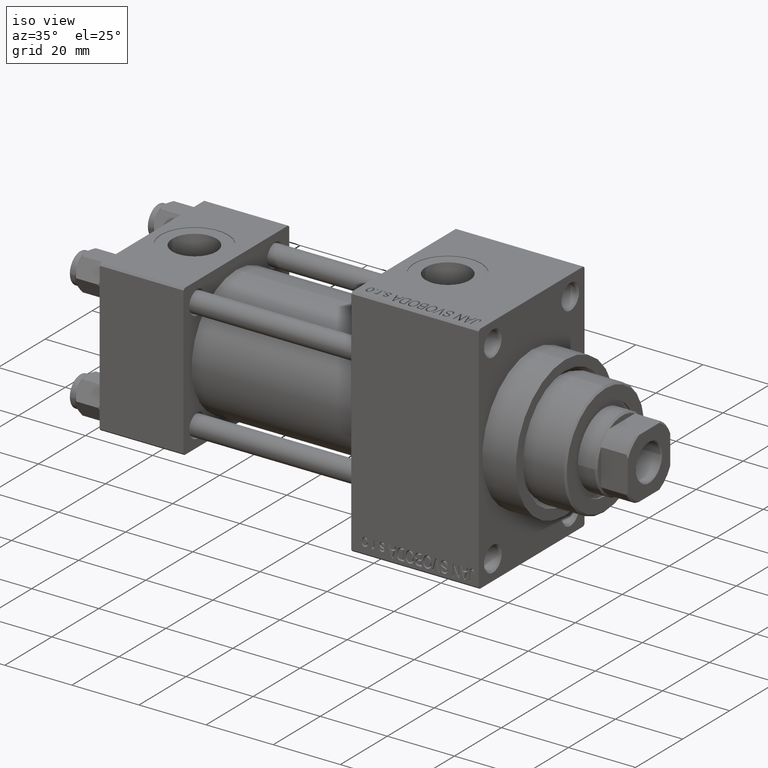
[diagram: clean part render]
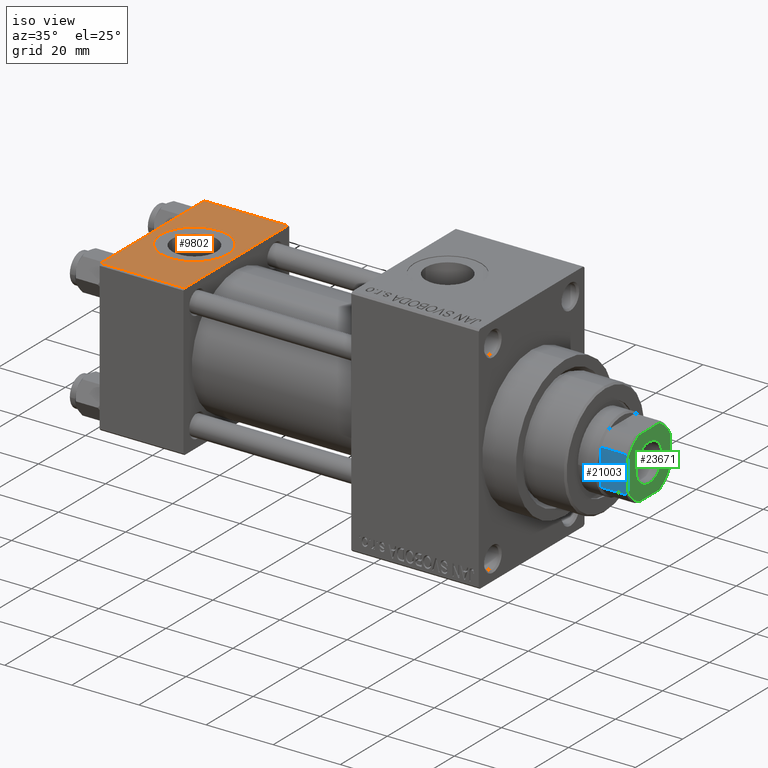
[diagram: same view with three faces highlighted in distinct colors, each labeled with its STEP entity id]
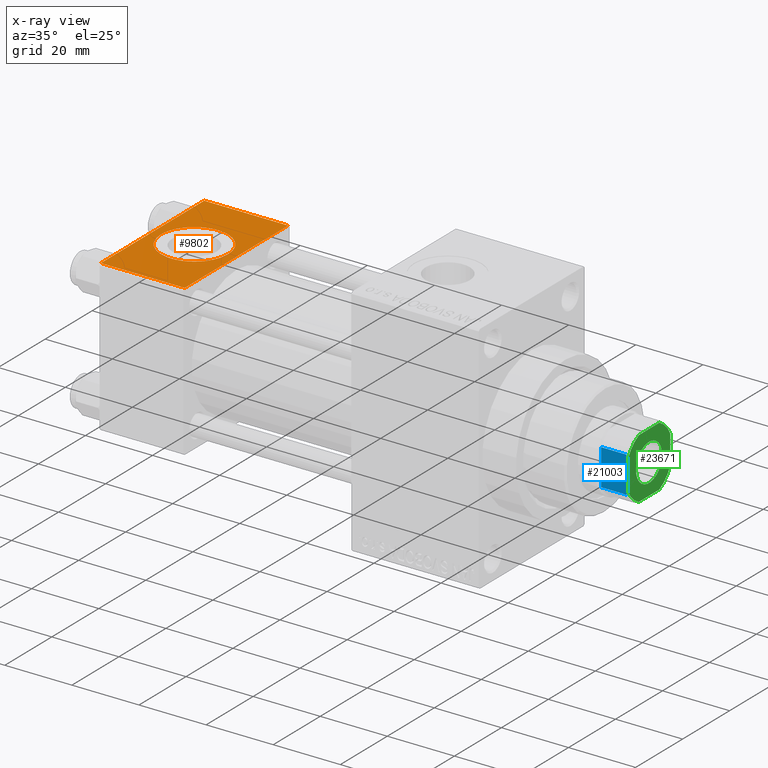
[diagram: x-ray of the same camera — body ghosted, the three highlighted faces saturated]
A machine part, iso view with three faces highlighted in distinct colors.
The next image is the same camera in x-ray (body ghosted, the three faces saturated) — at least one of them is partly hidden behind the body in this view.
Their STEP definitions:

[orange] entity #9802 — the highlighted planar face has unit normal (0, 0, -1).
#289 = ORIENTED_EDGE ( 'NONE', *, *, #6999, .T. ) ;
#1134 = EDGE_CURVE ( 'NONE', #44492, #31814, #42857, .T. ) ;
#2962 = DIRECTION ( 'NONE',  ( 1.000000000000000000, 0.000000000000000000, 0.000000000000000000 ) ) ;
#5297 = EDGE_LOOP ( 'NONE', ( #23133, #39540, #43624, #289 ) ) ;
#6059 = DIRECTION ( 'NONE',  ( 0.000000000000000000, -1.000000000000000000, -7.709882115452476934E-17 ) ) ;
#6999 = EDGE_CURVE ( 'NONE', #16542, #35653, #28659, .T. ) ;
#9763 = EDGE_CURVE ( 'NONE', #35653, #19019, #25685, .T. ) ;
#9802 = ADVANCED_FACE ( 'NONE', ( #44322, #18282 ), #33558, .F. ) ;
#10093 = CARTESIAN_POINT ( 'NONE',  ( 0.000000000000000000, 21.99999999999999289, 22.50000000000000355 ) ) ;
#10182 = CARTESIAN_POINT ( 'NONE',  ( 0.000000000000000000, -21.99999999999997868, 22.50000000000000000 ) ) ;
#11843 = CARTESIAN_POINT ( 'NONE',  ( 0.000000000000000000, 22.50000000000000000, 22.50000000000000355 ) ) ;
#12989 = AXIS2_PLACEMENT_3D ( 'NONE', #40463, #28546, #21615 ) ;
#14083 = VECTOR ( 'NONE', #6059, 1000.000000000000000 ) ;
#15267 = CIRCLE ( 'NONE', #12989, 9.999999999999998224 ) ;
#15414 = DIRECTION ( 'NONE',  ( 0.000000000000000000, 7.709882115452476934E-17, -1.000000000000000000 ) ) ;
#15662 = VECTOR ( 'NONE', #26959, 1000.000000000000000 ) ;
#16469 = ORIENTED_EDGE ( 'NONE', *, *, #22472, .F. ) ;
#16542 = VERTEX_POINT ( 'NONE', #37734 ) ;
#17755 = VECTOR ( 'NONE', #17919, 1000.000000000000000 ) ;
#17919 = DIRECTION ( 'NONE',  ( -1.000000000000000000, 0.000000000000000000, 0.000000000000000000 ) ) ;
#18282 = FACE_OUTER_BOUND ( 'NONE', #5297, .T. ) ;
#19019 = VERTEX_POINT ( 'NONE', #10182 ) ;
#20028 = CARTESIAN_POINT ( 'NONE',  ( 2.500000000000003997, -5.100766768294543310E-16, 22.50000000000000000 ) ) ;
#21069 = CARTESIAN_POINT ( 'NONE',  ( 12.50000000000000000, -1.734723475976807094E-15, 22.50000000000000000 ) ) ;
#21075 = VECTOR ( 'NONE', #40726, 1000.000000000000000 ) ;
#21615 = DIRECTION ( 'NONE',  ( 1.000000000000000000, 0.000000000000000000, 0.000000000000000000 ) ) ;
#22472 = EDGE_CURVE ( 'NONE', #31814, #44492, #15267, .T. ) ;
#23133 = ORIENTED_EDGE ( 'NONE', *, *, #9763, .T. ) ;
#23692 = CARTESIAN_POINT ( 'NONE',  ( 25.00000000000000000, 22.50000000000000000, 22.50000000000000355 ) ) ;
#24620 = CARTESIAN_POINT ( 'NONE',  ( 22.50000000000000000, -1.734723475976807094E-15, 22.50000000000000000 ) ) ;
#25685 = LINE ( 'NONE', #11843, #21075 ) ;
#26959 = DIRECTION ( 'NONE',  ( 1.000000000000000000, 0.000000000000000000, 0.000000000000000000 ) ) ;
#27433 = LINE ( 'NONE', #42007, #15662 ) ;
#28546 = DIRECTION ( 'NONE',  ( 0.000000000000000000, 0.000000000000000000, 1.000000000000000000 ) ) ;
#28659 = LINE ( 'NONE', #39415, #17755 ) ;
#28786 = CARTESIAN_POINT ( 'NONE',  ( 25.00000000000000000, -21.99999999999997868, 22.50000000000000000 ) ) ;
#29968 = DIRECTION ( 'NONE',  ( 0.000000000000000000, 1.000000000000000000, 7.709882115452476934E-17 ) ) ;
#30547 = ORIENTED_EDGE ( 'NONE', *, *, #1134, .F. ) ;
#30980 = AXIS2_PLACEMENT_3D ( 'NONE', #23692, #15414, #29968 ) ;
#31814 = VERTEX_POINT ( 'NONE', #24620 ) ;
#33431 = VERTEX_POINT ( 'NONE', #28786 ) ;
#33558 = PLANE ( 'NONE',  #30980 ) ;
#35653 = VERTEX_POINT ( 'NONE', #10093 ) ;
#35682 = EDGE_CURVE ( 'NONE', #16542, #33431, #46621, .T. ) ;
#37734 = CARTESIAN_POINT ( 'NONE',  ( 25.00000000000000000, 21.99999999999999289, 22.50000000000000355 ) ) ;
#37781 = EDGE_LOOP ( 'NONE', ( #16469, #30547 ) ) ;
#38741 = CARTESIAN_POINT ( 'NONE',  ( 25.00000000000000000, 22.50000000000000000, 22.50000000000000355 ) ) ;
#39144 = EDGE_CURVE ( 'NONE', #19019, #33431, #27433, .T. ) ;
#39415 = CARTESIAN_POINT ( 'NONE',  ( 0.000000000000000000, 21.99999999999999289, 22.50000000000000355 ) ) ;
#39540 = ORIENTED_EDGE ( 'NONE', *, *, #39144, .T. ) ;
#39800 = AXIS2_PLACEMENT_3D ( 'NONE', #21069, #42802, #2962 ) ;
#40463 = CARTESIAN_POINT ( 'NONE',  ( 12.50000000000000000, -1.734723475976807094E-15, 22.50000000000000000 ) ) ;
#40726 = DIRECTION ( 'NONE',  ( 0.000000000000000000, -1.000000000000000000, -7.709882115452476934E-17 ) ) ;
#42007 = CARTESIAN_POINT ( 'NONE',  ( 25.00000000000000000, -21.99999999999999289, 22.50000000000000000 ) ) ;
#42802 = DIRECTION ( 'NONE',  ( 0.000000000000000000, 0.000000000000000000, 1.000000000000000000 ) ) ;
#42857 = CIRCLE ( 'NONE', #39800, 9.999999999999998224 ) ;
#43624 = ORIENTED_EDGE ( 'NONE', *, *, #35682, .F. ) ;
#44322 = FACE_BOUND ( 'NONE', #37781, .T. ) ;
#44492 = VERTEX_POINT ( 'NONE', #20028 ) ;
#46621 = LINE ( 'NONE', #38741, #14083 ) ;

[blue] entity #21003 — the highlighted planar face has unit normal (0, 1, 0).
#91 = LINE ( 'NONE', #43760, #16220 ) ;
#2322 = ORIENTED_EDGE ( 'NONE', *, *, #40978, .F. ) ;
#2634 = FACE_OUTER_BOUND ( 'NONE', #13482, .T. ) ;
#4565 = CARTESIAN_POINT ( 'NONE',  ( 9.000000000000000000, -5.063687070142444568, 122.6775166608139216 ) ) ;
#5171 = LINE ( 'NONE', #23288, #30288 ) ;
#5231 = DIRECTION ( 'NONE',  ( -1.927470528863119049E-16, 1.000000000000000000, -0.000000000000000000 ) ) ;
#5982 = CARTESIAN_POINT ( 'NONE',  ( 8.999999999999996447, -5.408326913195990571, 122.5000000000000000 ) ) ;
#6258 = EDGE_CURVE ( 'NONE', #35624, #19063, #12392, .T. ) ;
#6737 = EDGE_CURVE ( 'NONE', #23000, #41305, #91, .T. ) ;
#8115 = EDGE_CURVE ( 'NONE', #41305, #35624, #11708, .T. ) ;
#8135 = EDGE_CURVE ( 'NONE', #40730, #33059, #21929, .T. ) ;
#8509 = ORIENTED_EDGE ( 'NONE', *, *, #6258, .T. ) ;
#8562 = CARTESIAN_POINT ( 'NONE',  ( 8.999999999999996447, 8.999999999999998224, 123.0000000000000000 ) ) ;
#9937 = CARTESIAN_POINT ( 'NONE',  ( 8.999999999999996447, 5.063687070142427693, 122.6775166608138932 ) ) ;
#11564 = EDGE_CURVE ( 'NONE', #23000, #33059, #5171, .T. ) ;
#11708 = LINE ( 'NONE', #41057, #21601 ) ;
#12392 = B_SPLINE_CURVE_WITH_KNOTS ( 'NONE', 3,
 ( #45997, #9937, #13523, #17099 ),
 .UNSPECIFIED., .F., .F.,
 ( 4, 4 ),
 ( 0.000000000000000000, 0.001162453897363273890 ),
 .UNSPECIFIED. ) ;
#12710 = ORIENTED_EDGE ( 'NONE', *, *, #11564, .F. ) ;
#13275 = ORIENTED_EDGE ( 'NONE', *, *, #6737, .T. ) ;
#13482 = EDGE_LOOP ( 'NONE', ( #33903, #8509, #2322, #27275, #12710, #13275 ) ) ;
#13523 = CARTESIAN_POINT ( 'NONE',  ( 8.999999999999998224, 4.714305797500204065, 122.8450817439748306 ) ) ;
#13704 = DIRECTION ( 'NONE',  ( -1.927470528863119049E-16, 1.000000000000000000, -0.000000000000000000 ) ) ;
#13818 = PLANE ( 'NONE',  #38865 ) ;
#14578 = CARTESIAN_POINT ( 'NONE',  ( 8.999999999999996447, -5.408326913195990571, 115.0000000000000284 ) ) ;
#14605 = CARTESIAN_POINT ( 'NONE',  ( 8.999999999999996447, 5.408326913195991459, 115.0000000000000284 ) ) ;
#14817 = CARTESIAN_POINT ( 'NONE',  ( 9.000000000000000000, -4.714305797500252027, 122.8450817439748448 ) ) ;
#16220 = VECTOR ( 'NONE', #13704, 1000.000000000000000 ) ;
#16443 = DIRECTION ( 'NONE',  ( 1.927470528863119049E-16, -1.000000000000000000, 0.000000000000000000 ) ) ;
#17099 = CARTESIAN_POINT ( 'NONE',  ( 8.999999999999998224, 4.358898943540600257, 123.0000000000000000 ) ) ;
#17254 = CARTESIAN_POINT ( 'NONE',  ( 8.999999999999996447, 5.408326913195991459, 122.4999999999999716 ) ) ;
#17657 = CARTESIAN_POINT ( 'NONE',  ( 8.999999999999998224, -4.358898943540672200, 123.0000000000000000 ) ) ;
#18621 = CARTESIAN_POINT ( 'NONE',  ( 8.999999999999996447, -5.408326913195990571, 122.5000000000000000 ) ) ;
#19063 = VERTEX_POINT ( 'NONE', #26772 ) ;
#19761 = LINE ( 'NONE', #8562, #30993 ) ;
#20734 = DIRECTION ( 'NONE',  ( -1.000000000000000000, -1.927470528863119049E-16, 0.000000000000000000 ) ) ;
#21003 = ADVANCED_FACE ( 'NONE', ( #2634 ), #13818, .F. ) ;
#21601 = VECTOR ( 'NONE', #21973, 1000.000000000000000 ) ;
#21929 = B_SPLINE_CURVE_WITH_KNOTS ( 'NONE', 3,
 ( #26719, #14817, #4565, #18621 ),
 .UNSPECIFIED., .F., .F.,
 ( 4, 4 ),
 ( 0.000000000000000000, 0.001162453897363195177 ),
 .UNSPECIFIED. ) ;
#21973 = DIRECTION ( 'NONE',  ( -0.000000000000000000, -0.000000000000000000, 1.000000000000000000 ) ) ;
#23000 = VERTEX_POINT ( 'NONE', #14578 ) ;
#23288 = CARTESIAN_POINT ( 'NONE',  ( 8.999999999999996447, -5.408326913195990571, -0.001000000000001000089 ) ) ;
#26719 = CARTESIAN_POINT ( 'NONE',  ( 8.999999999999998224, -4.358898943540672200, 123.0000000000000000 ) ) ;
#26772 = CARTESIAN_POINT ( 'NONE',  ( 8.999999999999998224, 4.358898943540600257, 123.0000000000000000 ) ) ;
#26862 = DIRECTION ( 'NONE',  ( -0.000000000000000000, -0.000000000000000000, 1.000000000000000000 ) ) ;
#27275 = ORIENTED_EDGE ( 'NONE', *, *, #8135, .T. ) ;
#30288 = VECTOR ( 'NONE', #26862, 1000.000000000000000 ) ;
#30993 = VECTOR ( 'NONE', #5231, 1000.000000000000000 ) ;
#33059 = VERTEX_POINT ( 'NONE', #5982 ) ;
#33903 = ORIENTED_EDGE ( 'NONE', *, *, #8115, .T. ) ;
#35062 = CARTESIAN_POINT ( 'NONE',  ( 8.999999999999996447, 8.999999999999998224, 123.0000000000000000 ) ) ;
#35624 = VERTEX_POINT ( 'NONE', #17254 ) ;
#38865 = AXIS2_PLACEMENT_3D ( 'NONE', #35062, #20734, #16443 ) ;
#40730 = VERTEX_POINT ( 'NONE', #17657 ) ;
#40978 = EDGE_CURVE ( 'NONE', #40730, #19063, #19761, .T. ) ;
#41057 = CARTESIAN_POINT ( 'NONE',  ( 8.999999999999996447, 5.408326913195991459, -0.001000000000001000089 ) ) ;
#41305 = VERTEX_POINT ( 'NONE', #14605 ) ;
#43760 = CARTESIAN_POINT ( 'NONE',  ( 8.999999999999996447, 8.999999999999998224, 115.0000000000000000 ) ) ;
#45997 = CARTESIAN_POINT ( 'NONE',  ( 8.999999999999996447, 5.408326913195991459, 122.4999999999999716 ) ) ;

[green] entity #23671 — the highlighted planar face has unit normal (1, 0, 0).
#199 = VERTEX_POINT ( 'NONE', #45708 ) ;
#312 = EDGE_LOOP ( 'NONE', ( #40213, #10632 ) ) ;
#1185 = VERTEX_POINT ( 'NONE', #46160 ) ;
#2214 = EDGE_CURVE ( 'NONE', #10083, #44778, #28399, .T. ) ;
#2779 = EDGE_CURVE ( 'NONE', #19063, #18475, #46707, .T. ) ;
#3301 = CARTESIAN_POINT ( 'NONE',  ( 0.000000000000000000, 0.000000000000000000, 123.0000000000000000 ) ) ;
#5035 = DIRECTION ( 'NONE',  ( 0.000000000000000000, -0.000000000000000000, -1.000000000000000000 ) ) ;
#5094 = LINE ( 'NONE', #27497, #26189 ) ;
#5231 = DIRECTION ( 'NONE',  ( -1.927470528863119049E-16, 1.000000000000000000, -0.000000000000000000 ) ) ;
#5269 = CARTESIAN_POINT ( 'NONE',  ( 0.000000000000000000, 0.000000000000000000, 123.0000000000000000 ) ) ;
#5567 = VECTOR ( 'NONE', #6583, 1000.000000000000000 ) ;
#5842 = DIRECTION ( 'NONE',  ( 9.637352644315595243E-17, -1.000000000000000000, 0.000000000000000000 ) ) ;
#6013 = FACE_BOUND ( 'NONE', #312, .T. ) ;
#6069 = AXIS2_PLACEMENT_3D ( 'NONE', #21933, #44380, #43911 ) ;
#6195 = DIRECTION ( 'NONE',  ( -0.000000000000000000, 0.000000000000000000, 1.000000000000000000 ) ) ;
#6250 = DIRECTION ( 'NONE',  ( 1.000000000000000000, 0.000000000000000000, 0.000000000000000000 ) ) ;
#6339 = VECTOR ( 'NONE', #5842, 1000.000000000000000 ) ;
#6581 = EDGE_CURVE ( 'NONE', #18057, #10083, #19658, .T. ) ;
#6583 = DIRECTION ( 'NONE',  ( -1.000000000000000000, -0.000000000000000000, -0.000000000000000000 ) ) ;
#8562 = CARTESIAN_POINT ( 'NONE',  ( 8.999999999999996447, 8.999999999999998224, 123.0000000000000000 ) ) ;
#9577 = DIRECTION ( 'NONE',  ( -0.000000000000000000, 0.000000000000000000, 1.000000000000000000 ) ) ;
#10083 = VERTEX_POINT ( 'NONE', #42270 ) ;
#10632 = ORIENTED_EDGE ( 'NONE', *, *, #16902, .T. ) ;
#12744 = EDGE_CURVE ( 'NONE', #199, #18057, #26508, .T. ) ;
#13587 = AXIS2_PLACEMENT_3D ( 'NONE', #14507, #31962, #28826 ) ;
#13730 = LINE ( 'NONE', #43557, #5567 ) ;
#14507 = CARTESIAN_POINT ( 'NONE',  ( 0.000000000000000000, 0.000000000000000000, 123.0000000000000000 ) ) ;
#15333 = AXIS2_PLACEMENT_3D ( 'NONE', #42277, #9577, #38694 ) ;
#15498 = EDGE_CURVE ( 'NONE', #1185, #34472, #25056, .T. ) ;
#16902 = EDGE_CURVE ( 'NONE', #34472, #1185, #41094, .T. ) ;
#16984 = AXIS2_PLACEMENT_3D ( 'NONE', #24835, #39399, #6250 ) ;
#17024 = EDGE_CURVE ( 'NONE', #30580, #40730, #31217, .T. ) ;
#17657 = CARTESIAN_POINT ( 'NONE',  ( 8.999999999999998224, -4.358898943540672200, 123.0000000000000000 ) ) ;
#18057 = VERTEX_POINT ( 'NONE', #29882 ) ;
#18475 = VERTEX_POINT ( 'NONE', #19543 ) ;
#19063 = VERTEX_POINT ( 'NONE', #26772 ) ;
#19543 = CARTESIAN_POINT ( 'NONE',  ( 4.358898943540597593, 8.999999999999998224, 123.0000000000000000 ) ) ;
#19658 = LINE ( 'NONE', #38052, #6339 ) ;
#19761 = LINE ( 'NONE', #8562, #30993 ) ;
#21115 = ORIENTED_EDGE ( 'NONE', *, *, #12744, .T. ) ;
#21446 = ORIENTED_EDGE ( 'NONE', *, *, #40978, .T. ) ;
#21933 = CARTESIAN_POINT ( 'NONE',  ( 0.000000000000000000, 0.000000000000000000, 123.0000000000000000 ) ) ;
#22875 = ORIENTED_EDGE ( 'NONE', *, *, #34032, .T. ) ;
#23505 = CARTESIAN_POINT ( 'NONE',  ( -5.550000000000013145, 6.796789735267826558E-16, 123.0000000000000000 ) ) ;
#23621 = DIRECTION ( 'NONE',  ( 1.000000000000000000, 0.000000000000000000, 0.000000000000000000 ) ) ;
#23671 = ADVANCED_FACE ( 'NONE', ( #6013, #34379 ), #31287, .T. ) ;
#24054 = DIRECTION ( 'NONE',  ( -0.000000000000000000, 0.000000000000000000, 1.000000000000000000 ) ) ;
#24399 = ORIENTED_EDGE ( 'NONE', *, *, #17024, .T. ) ;
#24616 = AXIS2_PLACEMENT_3D ( 'NONE', #31469, #6195, #45812 ) ;
#24835 = CARTESIAN_POINT ( 'NONE',  ( 0.000000000000000000, 0.000000000000000000, 123.0000000000000000 ) ) ;
#24932 = ORIENTED_EDGE ( 'NONE', *, *, #2214, .T. ) ;
#25056 = CIRCLE ( 'NONE', #28124, 5.550000000000013145 ) ;
#26189 = VECTOR ( 'NONE', #44957, 1000.000000000000000 ) ;
#26508 = CIRCLE ( 'NONE', #13587, 9.999999999999996447 ) ;
#26772 = CARTESIAN_POINT ( 'NONE',  ( 8.999999999999998224, 4.358898943540600257, 123.0000000000000000 ) ) ;
#26897 = CARTESIAN_POINT ( 'NONE',  ( -4.358898943540667759, -9.000000000000001776, 123.0000000000000000 ) ) ;
#27497 = CARTESIAN_POINT ( 'NONE',  ( -9.000000000000001776, -9.000000000000001776, 123.0000000000000000 ) ) ;
#28124 = AXIS2_PLACEMENT_3D ( 'NONE', #5269, #5035, #23621 ) ;
#28333 = EDGE_CURVE ( 'NONE', #18475, #199, #13730, .T. ) ;
#28399 = CIRCLE ( 'NONE', #16984, 9.999999999999998224 ) ;
#28826 = DIRECTION ( 'NONE',  ( 1.000000000000000000, 0.000000000000000000, 0.000000000000000000 ) ) ;
#29882 = CARTESIAN_POINT ( 'NONE',  ( -9.000000000000003553, 4.358898943540662430, 123.0000000000000000 ) ) ;
#30580 = VERTEX_POINT ( 'NONE', #35941 ) ;
#30993 = VECTOR ( 'NONE', #5231, 1000.000000000000000 ) ;
#31217 = CIRCLE ( 'NONE', #31257, 9.999999999999998224 ) ;
#31257 = AXIS2_PLACEMENT_3D ( 'NONE', #3301, #24054, #38619 ) ;
#31287 = PLANE ( 'NONE',  #15333 ) ;
#31469 = CARTESIAN_POINT ( 'NONE',  ( 0.000000000000000000, 0.000000000000000000, 123.0000000000000000 ) ) ;
#31962 = DIRECTION ( 'NONE',  ( -0.000000000000000000, 0.000000000000000000, 1.000000000000000000 ) ) ;
#34032 = EDGE_CURVE ( 'NONE', #44778, #30580, #5094, .T. ) ;
#34222 = ORIENTED_EDGE ( 'NONE', *, *, #6581, .T. ) ;
#34379 = FACE_OUTER_BOUND ( 'NONE', #41452, .T. ) ;
#34472 = VERTEX_POINT ( 'NONE', #23505 ) ;
#35941 = CARTESIAN_POINT ( 'NONE',  ( 4.358898943540667759, -9.000000000000001776, 123.0000000000000000 ) ) ;
#36274 = ORIENTED_EDGE ( 'NONE', *, *, #28333, .T. ) ;
#38052 = CARTESIAN_POINT ( 'NONE',  ( -9.000000000000003553, 8.999999999999998224, 123.0000000000000000 ) ) ;
#38619 = DIRECTION ( 'NONE',  ( 1.000000000000000000, 0.000000000000000000, 0.000000000000000000 ) ) ;
#38694 = DIRECTION ( 'NONE',  ( 1.000000000000000000, 0.000000000000000000, 0.000000000000000000 ) ) ;
#39399 = DIRECTION ( 'NONE',  ( -0.000000000000000000, 0.000000000000000000, 1.000000000000000000 ) ) ;
#40213 = ORIENTED_EDGE ( 'NONE', *, *, #15498, .T. ) ;
#40686 = ORIENTED_EDGE ( 'NONE', *, *, #2779, .T. ) ;
#40730 = VERTEX_POINT ( 'NONE', #17657 ) ;
#40978 = EDGE_CURVE ( 'NONE', #40730, #19063, #19761, .T. ) ;
#41094 = CIRCLE ( 'NONE', #6069, 5.550000000000013145 ) ;
#41452 = EDGE_LOOP ( 'NONE', ( #21446, #40686, #36274, #21115, #34222, #24932, #22875, #24399 ) ) ;
#42270 = CARTESIAN_POINT ( 'NONE',  ( -9.000000000000003553, -4.358898943540665094, 123.0000000000000000 ) ) ;
#42277 = CARTESIAN_POINT ( 'NONE',  ( 0.000000000000000000, 0.000000000000000000, 123.0000000000000000 ) ) ;
#43557 = CARTESIAN_POINT ( 'NONE',  ( -9.000000000000003553, 8.999999999999998224, 123.0000000000000000 ) ) ;
#43911 = DIRECTION ( 'NONE',  ( 1.000000000000000000, 0.000000000000000000, 0.000000000000000000 ) ) ;
#44380 = DIRECTION ( 'NONE',  ( 0.000000000000000000, -0.000000000000000000, -1.000000000000000000 ) ) ;
#44778 = VERTEX_POINT ( 'NONE', #26897 ) ;
#44957 = DIRECTION ( 'NONE',  ( 1.000000000000000000, 0.000000000000000000, 0.000000000000000000 ) ) ;
#45708 = CARTESIAN_POINT ( 'NONE',  ( -4.358898943540671311, 8.999999999999998224, 123.0000000000000000 ) ) ;
#45812 = DIRECTION ( 'NONE',  ( 1.000000000000000000, 0.000000000000000000, 0.000000000000000000 ) ) ;
#46160 = CARTESIAN_POINT ( 'NONE',  ( 5.550000000000013145, 0.000000000000000000, 123.0000000000000000 ) ) ;
#46707 = CIRCLE ( 'NONE', #24616, 9.999999999999966249 ) ;